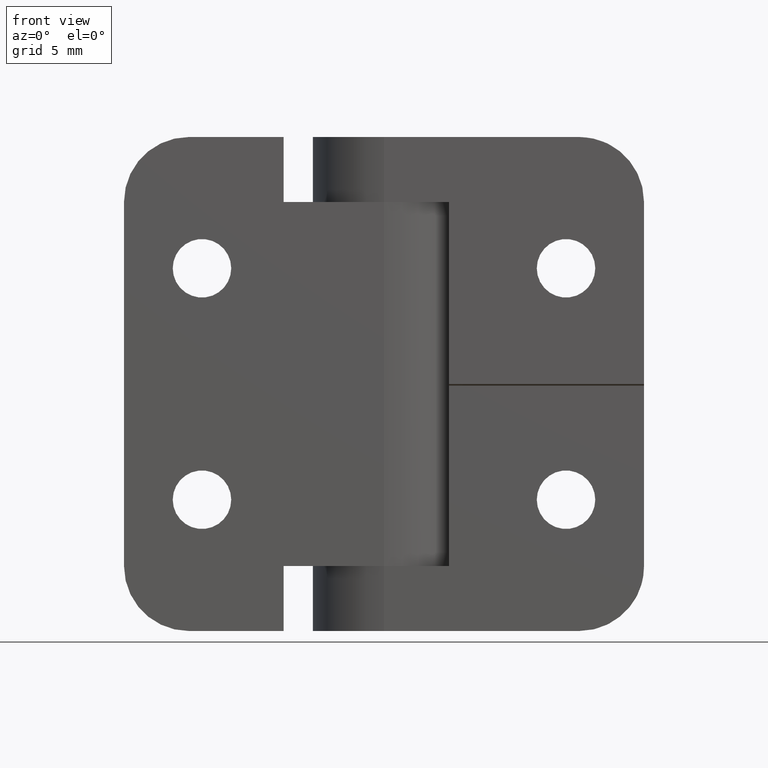
[diagram: clean part render]
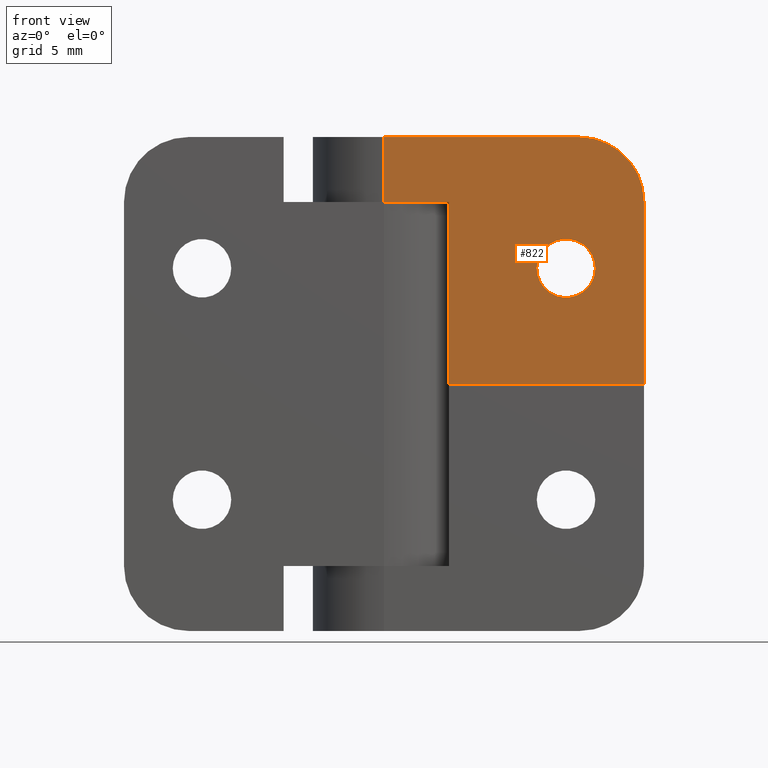
[diagram: same view with one face highlighted and labeled with its STEP entity id]
A machine part, front view. The second image highlights one B-rep face of the part: STEP entity #822.
In plain terms, the highlighted planar face has unit normal (0, -1, 0).
Its self-contained STEP definition (entity closure, byte-faithful):
#52=FACE_BOUND('',#332,.T.);
#109=LINE('',#1342,#182);
#112=LINE('',#1352,#185);
#113=LINE('',#1355,#186);
#118=LINE('',#1386,#191);
#120=LINE('',#1390,#193);
#121=LINE('',#1391,#194);
#182=VECTOR('',#1095,15.);
#185=VECTOR('',#1102,5.);
#186=VECTOR('',#1107,5.);
#191=VECTOR('',#1130,14.);
#193=VECTOR('',#1134,15.);
#194=VECTOR('',#1135,14.);
#223=PLANE('',#906);
#270=FACE_OUTER_BOUND('',#331,.T.);
#331=EDGE_LOOP('',(#739,#740,#741,#742,#743,#744,#745));
#332=EDGE_LOOP('',(#746));
#364=CIRCLE('',#899,5.);
#365=CIRCLE('',#901,2.25);
#426=VERTEX_POINT('',#1336);
#428=VERTEX_POINT('',#1340);
#432=VERTEX_POINT('',#1349);
#433=VERTEX_POINT('',#1351);
#434=VERTEX_POINT('',#1369);
#435=VERTEX_POINT('',#1373);
#440=VERTEX_POINT('',#1384);
#441=VERTEX_POINT('',#1389);
#526=EDGE_CURVE('',#428,#426,#109,.T.);
#530=EDGE_CURVE('',#433,#432,#112,.T.);
#532=EDGE_CURVE('',#428,#433,#113,.T.);
#535=EDGE_CURVE('',#426,#434,#364,.T.);
#537=EDGE_CURVE('',#435,#435,#365,.T.);
#542=EDGE_CURVE('',#432,#440,#118,.T.);
#544=EDGE_CURVE('',#440,#441,#120,.T.);
#545=EDGE_CURVE('',#434,#441,#121,.T.);
#739=ORIENTED_EDGE('',*,*,#544,.T.);
#740=ORIENTED_EDGE('',*,*,#545,.F.);
#741=ORIENTED_EDGE('',*,*,#535,.F.);
#742=ORIENTED_EDGE('',*,*,#526,.F.);
#743=ORIENTED_EDGE('',*,*,#532,.T.);
#744=ORIENTED_EDGE('',*,*,#530,.T.);
#745=ORIENTED_EDGE('',*,*,#542,.T.);
#746=ORIENTED_EDGE('',*,*,#537,.T.);
#822=ADVANCED_FACE('',(#270,#52),#223,.T.);
#899=AXIS2_PLACEMENT_3D('',#1370,#1113,#1114);
#901=AXIS2_PLACEMENT_3D('',#1374,#1118,#1119);
#906=AXIS2_PLACEMENT_3D('',#1388,#1132,#1133);
#1095=DIRECTION('',(1.,0.,0.));
#1102=DIRECTION('',(1.,0.,0.));
#1107=DIRECTION('',(0.,0.,-1.));
#1113=DIRECTION('center_axis',(0.,1.,0.));
#1114=DIRECTION('ref_axis',(0.707106781186548,0.,0.707106781186548));
#1118=DIRECTION('center_axis',(0.,1.,0.));
#1119=DIRECTION('ref_axis',(1.,0.,0.));
#1130=DIRECTION('',(0.,0.,-1.));
#1132=DIRECTION('center_axis',(0.,-1.,0.));
#1133=DIRECTION('ref_axis',(1.,0.,0.));
#1134=DIRECTION('',(1.,0.,0.));
#1135=DIRECTION('',(0.,0.,-1.));
#1336=CARTESIAN_POINT('',(15.,-5.5,19.));
#1340=CARTESIAN_POINT('',(0.,-5.5,19.));
#1342=CARTESIAN_POINT('',(20.,-5.5,19.));
#1349=CARTESIAN_POINT('',(5.,-5.5,14.));
#1351=CARTESIAN_POINT('',(0.,-5.5,14.));
#1352=CARTESIAN_POINT('',(2.5,-5.5,14.));
#1355=CARTESIAN_POINT('',(0.,-5.5,0.));
#1369=CARTESIAN_POINT('',(20.,-5.5,14.));
#1370=CARTESIAN_POINT('Origin',(15.,-5.5,14.));
#1373=CARTESIAN_POINT('',(11.75,-5.5,8.9));
#1374=CARTESIAN_POINT('Origin',(14.,-5.5,8.9));
#1384=CARTESIAN_POINT('',(5.,-5.5,4.44089209850063E-15));
#1386=CARTESIAN_POINT('',(5.,-5.5,-7.));
#1388=CARTESIAN_POINT('Origin',(0.,-5.5,0.));
#1389=CARTESIAN_POINT('',(20.,-5.5,4.44089209850063E-15));
#1390=CARTESIAN_POINT('',(10.,-5.5,4.49782661258397E-15));
#1391=CARTESIAN_POINT('',(20.,-5.5,0.));